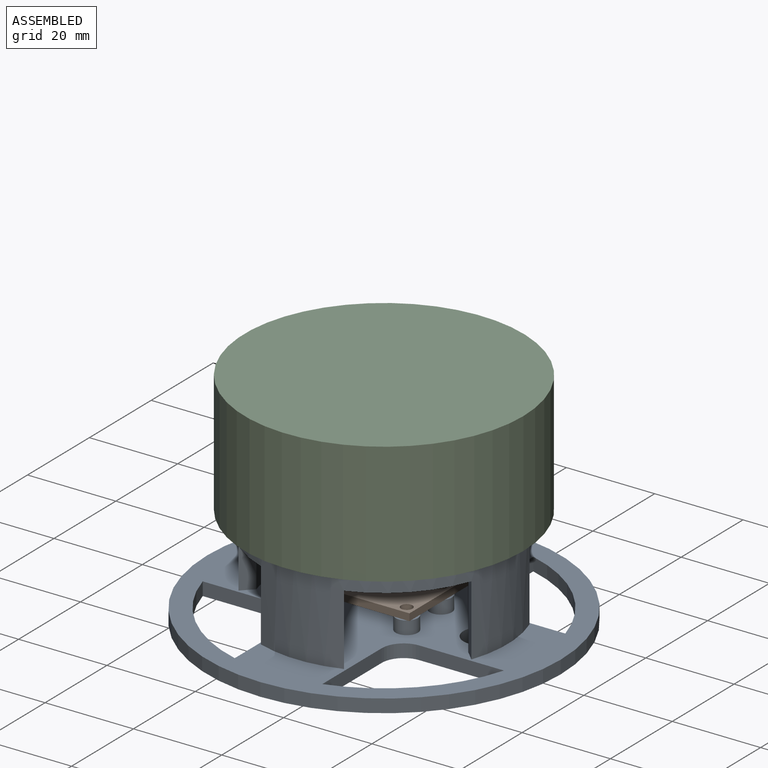
[diagram: assembled view]
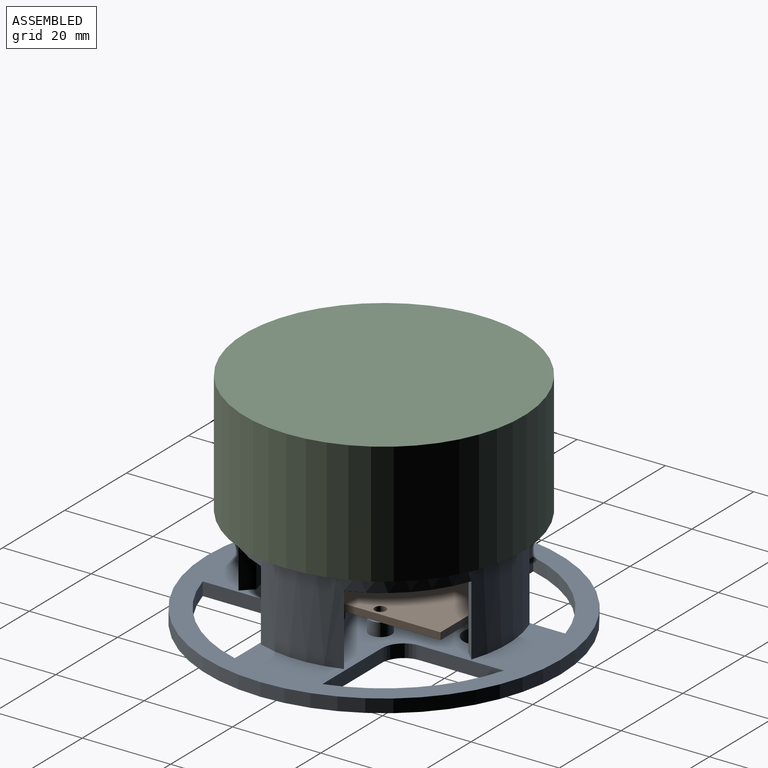
[diagram: assembled view, second angle]
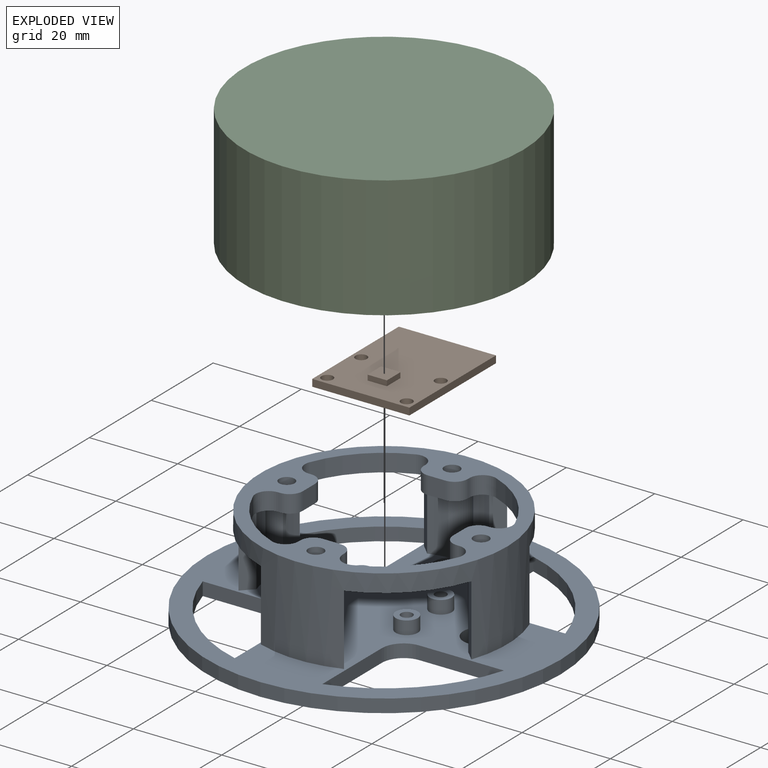
[diagram: exploded view]
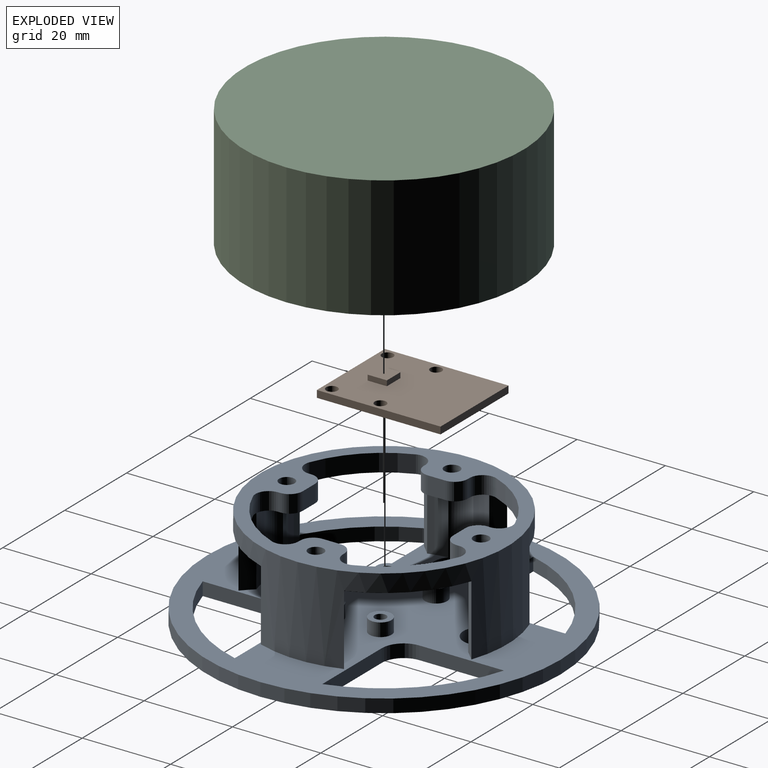
[diagram: exploded view, second angle]
ASSEMBLY  parts=3 mates=2
PART A: 98 faces, bbox 80x80x23 mm
  f0: plane 2.62x2.62mm, normal (0,0,1), area 0.1mm2, adj f68,f79
  f1: plane 2.62x2.62mm, normal (0,0,1), area 0.1mm2, adj f69,f76
  f2: plane 2.62x2.62mm, normal (0,0,1), area 0.1mm2, adj f67,f73
  f3: plane 2.62x2.62mm, normal (0,0,1), area 0.1mm2, adj f66,f70
  f4: cylinder r=28mm len=56mm, axis (0,0,-1), area 1931.2mm2, adj f17,f19,f36,f58,f59,f60,f61,f62
  f5: cylinder r=25mm len=16mm, axis (0,0,1), area 68.7mm2, adj f17,f19,f57,f65
  f6: cylinder r=25mm len=14.2mm, axis (0,0,1), area 82.6mm2, adj f19,f36,f47,f52
  f7: cylinder r=25mm len=16mm, axis (0,0,1), area 68.7mm2, adj f17,f19,f56,f62
  f8: cylinder r=25mm len=14.2mm, axis (0,0,1), area 82.6mm2, adj f19,f36,f39,f45
  f9: cylinder r=25mm len=16mm, axis (0,0,1), area 68.7mm2, adj f17,f19,f57,f61
  f10: cylinder r=25mm len=14.2mm, axis (0,0,1), area 82.6mm2, adj f19,f36,f40,f51
  f11: cylinder r=25mm len=16mm, axis (0,0,1), area 68.7mm2, adj f17,f19,f54,f58
  f12: cylinder r=25mm len=14.2mm, axis (0,0,1), area 82.6mm2, adj f19,f36,f44,f48
  f13: cylinder r=25mm len=16mm, axis (0,0,1), area 68.7mm2, adj f17,f19,f54,f64
  f14: cylinder r=25mm len=16mm, axis (0,0,1), area 68.7mm2, adj f17,f19,f56,f60
  f15: cylinder r=25mm len=16mm, axis (0,0,1), area 68.7mm2, adj f17,f19,f55,f63
  f16: cylinder r=40mm len=80mm, axis (0,0,-1), area 754mm2, adj f17,f18
  f17: plane 80x80mm, normal (0,0,1), area 3005.9mm2, adj f4,f5,f7,f9,f11,f13,f14,f15
  f18: plane 80x80mm, normal (0,0,-1), area 3248.2mm2, adj f16,f54,f55,f56,f57,f66,f67,f68
  f19: plane 52.75x52.75mm, normal (0,0,-1), area 605mm2, adj f4,f5,f6,f7,f8,f9,f10,f11
  f20: plane 4x4mm, normal (1,0,0), area 16mm2, adj f19,f36,f38,f41
  f21: plane 4x0.49mm, normal (0,1,0), area 2mm2, adj f19,f36,f38,f39
  f22: plane 4x0.49mm, normal (-1,0,0), area 2mm2, adj f19,f36,f42,f45
  f23: plane 4x4mm, normal (0,-1,0), area 16mm2, adj f19,f36,f42,f43
  f24: plane 4x0.49mm, normal (1,0,0), area 2mm2, adj f19,f36,f43,f44
  f25: plane 4x0.49mm, normal (0,1,0), area 2mm2, adj f19,f36,f48,f49
  f26: plane 4x4mm, normal (-1,0,0), area 16mm2, adj f19,f36,f46,f49
  f27: plane 4x0.49mm, normal (0,-1,0), area 2mm2, adj f19,f36,f46,f47
  f28: plane 4x0.49mm, normal (1,0,0), area 2mm2, adj f19,f36,f52,f53
  f29: plane 4x4mm, normal (0,1,0), area 16mm2, adj f19,f36,f50,f53
  f30: plane 4x0.49mm, normal (-1,0,0), area 2mm2, adj f19,f36,f50,f51
  f31: cylinder r=1.75mm len=4mm, axis (0,0,-1), area 44mm2, adj f19,f36
  f32: cylinder r=1.75mm len=4mm, axis (0,0,-1), area 44mm2, adj f19,f36
  f33: cylinder r=1.75mm len=4mm, axis (0,0,-1), area 44mm2, adj f19,f36
  f34: plane 4x0.49mm, normal (0,-1,0), area 2mm2, adj f19,f36,f40,f41
  f35: cylinder r=1.75mm len=4mm, axis (0,0,-1), area 44mm2, adj f19,f36
  f36: plane 56x56mm, normal (0,0,1), area 790mm2, adj f4,f6,f8,f10,f12,f20,f21,f22
  f37: cylinder r=25mm len=16mm, axis (0,0,1), area 68.7mm2, adj f17,f19,f55,f59
  f38: cylinder r=3mm len=4mm, axis (0,0,1), area 18.8mm2, adj f19,f20,f21,f36
  f39: cylinder r=3mm len=4.09mm, axis (0,0,1), area 23.3mm2, adj f8,f19,f21,f36
  f40: cylinder r=3mm len=4.09mm, axis (0,0,1), area 23.3mm2, adj f10,f19,f34,f36
  f41: cylinder r=3mm len=4mm, axis (0,0,-1), area 18.8mm2, adj f19,f20,f34,f36
  f42: cylinder r=3mm len=4mm, axis (0,0,-1), area 18.8mm2, adj f19,f22,f23,f36
  f43: cylinder r=3mm len=4mm, axis (0,0,1), area 18.8mm2, adj f19,f23,f24,f36
  f44: cylinder r=3mm len=4.09mm, axis (0,0,1), area 23.3mm2, adj f12,f19,f24,f36
  f45: cylinder r=3mm len=4.09mm, axis (0,0,1), area 23.3mm2, adj f8,f19,f22,f36
  f46: cylinder r=3mm len=4mm, axis (0,0,1), area 18.8mm2, adj f19,f26,f27,f36
  f47: cylinder r=3mm len=4.09mm, axis (0,0,1), area 23.3mm2, adj f6,f19,f27,f36
  f48: cylinder r=3mm len=4.09mm, axis (0,0,1), area 23.3mm2, adj f12,f19,f25,f36
  f49: cylinder r=3mm len=4mm, axis (0,0,-1), area 18.8mm2, adj f19,f25,f26,f36
  f50: cylinder r=3mm len=4mm, axis (0,0,1), area 18.8mm2, adj f19,f29,f30,f36
  f51: cylinder r=3mm len=4.09mm, axis (0,0,1), area 23.3mm2, adj f10,f19,f30,f36
  f52: cylinder r=3mm len=4.09mm, axis (0,0,1), area 23.3mm2, adj f6,f19,f28,f36
  f53: cylinder r=3mm len=4mm, axis (0,0,-1), area 18.8mm2, adj f19,f28,f29,f36
  f54: cylinder r=4mm len=19mm, axis (0,0,-1), area 175.4mm2, adj f11,f13,f17,f18,f19
  f55: cylinder r=4mm len=19mm, axis (0,0,-1), area 175.4mm2, adj f15,f17,f18,f19,f37
  f56: cylinder r=4mm len=19mm, axis (0,0,-1), area 175.4mm2, adj f7,f14,f17,f18,f19
  f57: cylinder r=4mm len=19mm, axis (0,0,-1), area 175.4mm2, adj f5,f9,f17,f18,f19
  f58: plane 16x2.38mm, normal (-0.71,0.71,0), area 53.9mm2, adj f4,f11,f17,f19
  f59: plane 16x2.38mm, normal (0.71,-0.71,0), area 53.9mm2, adj f4,f17,f19,f37
  f60: plane 16x2.38mm, normal (0.71,-0.71,0), area 53.9mm2, adj f4,f14,f17,f19
  f61: plane 16x2.38mm, normal (-0.71,0.71,0), area 53.9mm2, adj f4,f9,f17,f19
  f62: plane 16x2.38mm, normal (0.71,0.71,0), area 53.9mm2, adj f4,f7,f17,f19
  f63: plane 16x2.38mm, normal (-0.71,-0.71,0), area 53.9mm2, adj f4,f15,f17,f19
  f64: plane 16x2.38mm, normal (-0.71,-0.71,0), area 53.9mm2, adj f4,f13,f17,f19
  f65: plane 16x2.38mm, normal (0.71,0.71,0), area 53.9mm2, adj f4,f5,f17,f19
  f66: cylinder r=1.3mm len=3mm, axis (0,0,1), area 24.5mm2, adj f3,f18
  f67: cylinder r=1.3mm len=3mm, axis (0,0,1), area 24.5mm2, adj f2,f18
  f68: cylinder r=1.3mm len=3mm, axis (0,0,1), area 24.5mm2, adj f0,f18
  f69: cylinder r=1.3mm len=3mm, axis (0,0,1), area 24.5mm2, adj f1,f18
  f70: cylinder r=1.31mm len=3mm, axis (0,0,-1), area 24.7mm2, adj f3,f72
  f71: cylinder r=2.5mm len=5mm, axis (0,0,-1), area 47.1mm2, adj f17,f72
  f72: plane 5x5mm, normal (0,0,1), area 14.3mm2, adj f70,f71
  f73: cylinder r=1.31mm len=3mm, axis (0,0,-1), area 24.7mm2, adj f2,f75
  f74: cylinder r=2.5mm len=5mm, axis (0,0,-1), area 47.1mm2, adj f17,f75
  f75: plane 5x5mm, normal (0,0,1), area 14.3mm2, adj f73,f74
  f76: cylinder r=1.31mm len=3mm, axis (0,0,-1), area 24.7mm2, adj f1,f78
  f77: cylinder r=2.5mm len=5mm, axis (0,0,-1), area 47.1mm2, adj f17,f78
  f78: plane 5x5mm, normal (0,0,1), area 14.3mm2, adj f76,f77
  f79: cylinder r=1.31mm len=3mm, axis (0,0,-1), area 24.7mm2, adj f0,f81
  f80: cylinder r=2.5mm len=5mm, axis (0,0,-1), area 47.1mm2, adj f17,f81
  f81: plane 5x5mm, normal (0,0,1), area 14.3mm2, adj f79,f80
  f82: plane 19.2x3mm, normal (0,-1,0), area 57.6mm2, adj f17,f18,f84,f97
  f83: plane 19.2x3mm, normal (-1,0,0), area 57.6mm2, adj f17,f18,f84,f97
  f84: cylinder r=35.52mm len=24.2mm, axis (0,0,-1), area 107.1mm2, adj f17,f18,f82,f83
  f85: plane 19.2x3mm, normal (0,-1,0), area 57.6mm2, adj f17,f18,f86,f96
  f86: cylinder r=35.52mm len=24.2mm, axis (0,0,-1), area 107.1mm2, adj f17,f18,f85,f87
  f87: plane 19.2x3mm, normal (1,0,0), area 57.6mm2, adj f17,f18,f86,f96
  f88: plane 19.2x3mm, normal (1,0,0), area 57.6mm2, adj f17,f18,f89,f95
  f89: cylinder r=35.52mm len=24.2mm, axis (0,0,-1), area 107.1mm2, adj f17,f18,f88,f90
  f90: plane 19.2x3mm, normal (0,1,0), area 57.6mm2, adj f17,f18,f89,f95
  f91: plane 19.2x3mm, normal (0,1,0), area 57.6mm2, adj f17,f18,f92,f94
  f92: cylinder r=35.52mm len=24.2mm, axis (0,0,-1), area 107.1mm2, adj f17,f18,f91,f93
  f93: plane 19.2x3mm, normal (-1,0,0), area 57.6mm2, adj f17,f18,f92,f94
  f94: cylinder r=5mm len=5mm, axis (0,0,1), area 23.6mm2, adj f17,f18,f91,f93
  f95: cylinder r=5mm len=5mm, axis (0,0,1), area 23.6mm2, adj f17,f18,f88,f90
  f96: cylinder r=5mm len=5mm, axis (0,0,1), area 23.6mm2, adj f17,f18,f85,f87
  f97: cylinder r=5mm len=5mm, axis (0,0,1), area 23.6mm2, adj f17,f18,f82,f83
PART B: 15 faces, bbox 22x28x2.8 mm
  f0: plane 28x1.6mm, normal (-1,0,0), area 44.8mm2, adj f1,f7,f8,f9
  f1: plane 22x1.6mm, normal (0,-1,0), area 35.2mm2, adj f0,f2,f8,f9
  f2: plane 28x1.6mm, normal (1,0,0), area 44.8mm2, adj f1,f7,f8,f9
  f3: cylinder r=1.3mm len=2.6mm, axis (0,0,-1), area 13.1mm2, adj f8,f9
  f4: cylinder r=1.3mm len=2.6mm, axis (0,0,-1), area 13.1mm2, adj f8,f9
  f5: cylinder r=1.3mm len=2.6mm, axis (0,0,-1), area 13.1mm2, adj f8,f9
  f6: cylinder r=1.3mm len=2.6mm, axis (0,0,-1), area 13.1mm2, adj f8,f9
  f7: plane 22x1.6mm, normal (0,1,0), area 35.2mm2, adj f0,f2,f8,f9
  f8: plane 28x22mm, normal (0,0,1), area 575.6mm2, adj f0,f1,f2,f3,f4,f5,f6,f7
  f9: plane 28x22mm, normal (0,0,-1), area 594.8mm2, adj f0,f1,f2,f3,f4,f5,f6,f7
  f10: plane 4.38x1.2mm, normal (1,0,0), area 5.3mm2, adj f8,f11,f13,f14
  f11: plane 4.38x1.2mm, normal (0,1,0), area 5.3mm2, adj f8,f10,f12,f14
  f12: plane 4.38x1.2mm, normal (-1,0,0), area 5.3mm2, adj f8,f11,f13,f14
  f13: plane 4.38x1.2mm, normal (0,-1,0), area 5.3mm2, adj f8,f10,f12,f14
  f14: plane 4.38x4.38mm, normal (0,0,1), area 19.1mm2, adj f10,f11,f12,f13
PART C: 15 faces, bbox 63.1x63.1x39.6 mm
  f0: cylinder r=31.57mm len=63.13mm, axis (0,0,-1), area 5473.9mm2, adj f1,f2
  f1: plane 63.13x63.13mm, normal (0,0,1), area 3130.1mm2, adj f0
  f2: plane 63.13x63.13mm, normal (0,0,-1), area 3082.2mm2, adj f0,f3,f7,f9,f11,f13
  f3: cylinder r=2.5mm len=9mm, axis (0,0,1), area 141.4mm2, adj f2,f4
  f4: plane 5x5mm, normal (0,0,-1), area 10mm2, adj f3,f5
  f5: cylinder r=1.75mm len=3.5mm, axis (0,0,1), area 33mm2, adj f4,f6
  f6: plane 3.5x3.5mm, normal (0,0,-1), area 9.6mm2, adj f5
  f7: cylinder r=1.5mm len=5mm, axis (0,0,-1), area 47.1mm2, adj f2,f8
  f8: plane 3x3mm, normal (0,0,-1), area 7.1mm2, adj f7
  f9: cylinder r=1.5mm len=5mm, axis (0,0,-1), area 47.1mm2, adj f2,f10
  f10: plane 3x3mm, normal (0,0,-1), area 7.1mm2, adj f9
  f11: cylinder r=1.5mm len=5mm, axis (0,0,-1), area 47.1mm2, adj f2,f12
  f12: plane 3x3mm, normal (0,0,-1), area 7.1mm2, adj f11
  f13: cylinder r=1.5mm len=5mm, axis (0,0,-1), area 47.1mm2, adj f2,f14
  f14: plane 3x3mm, normal (0,0,-1), area 7.1mm2, adj f13
PLACE A t=(2.89,-11.65,26.79)mm
PLACE B t=(2.89,-11.65,32.79)mm
PLACE C t=(2.89,-11.65,49.79)mm
MATE fastened B.f3 <-> A.f66  axis (0,0,-1) through (-6.11,-6.15,32.79)mm
MATE fastened C.f13 <-> A.f31  axis (0,0,-1) through (2.89,-33.65,49.79)mm
